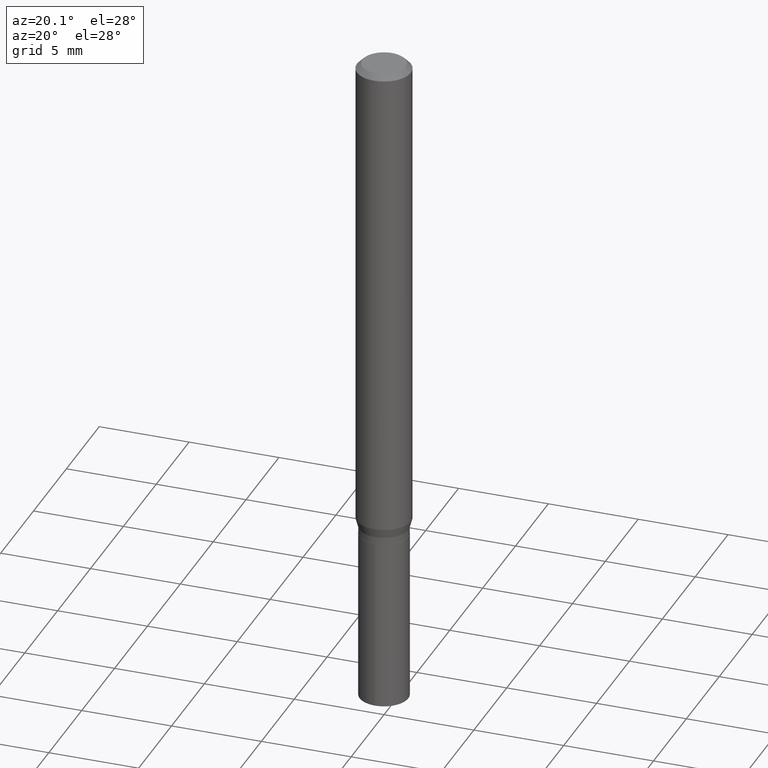
[diagram: clean part render]
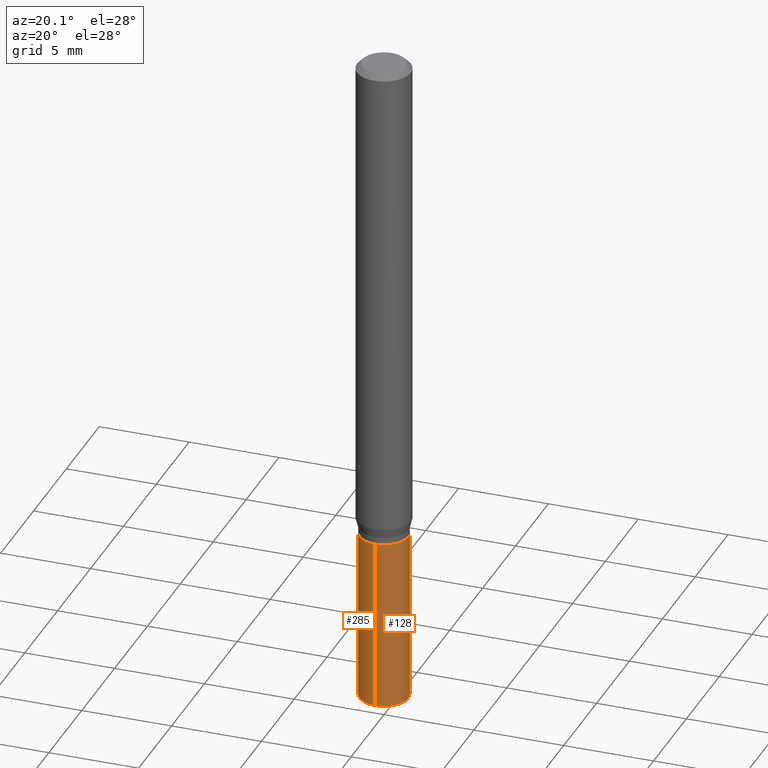
[diagram: same view with one multi-face feature highlighted, each face labeled with its STEP entity id]
A machine part, auxiliary view. The highlighted faces form ONE feature: a constant-radius fillet chain: 2 tangent blend faces with common blend radius 1.3551 mm. The faces share edges in the B-rep.
Their STEP definitions:
[1] entity #285 (Cylinder):
#6 = CIRCLE ( 'NONE', #55, 0.05335000000000000159 ) ;
#15 = VERTEX_POINT ( 'NONE', #281 ) ;
#19 = DIRECTION ( 'NONE',  ( -2.445458899330790108E-29, 3.491495526022433599E-15, 1.000000000000000000 ) ) ;
#39 = CARTESIAN_POINT ( 'NONE',  ( -3.725410588545355495E-16, -0.05335000000000382492, -1.094499999999999806 ) ) ;
#43 = DIRECTION ( 'NONE',  ( -6.982962677686265133E-15, -1.000000000000000000, 2.560307397998372008E-15 ) ) ;
#49 = ORIENTED_EDGE ( 'NONE', *, *, #288, .F. ) ;
#55 = AXIS2_PLACEMENT_3D ( 'NONE', #377, #107, #43 ) ;
#57 = CARTESIAN_POINT ( 'NONE',  ( 2.676565608369631794E-29, -3.821426325363822773E-15, -1.094499999999999806 ) ) ;
#90 = ORIENTED_EDGE ( 'NONE', *, *, #108, .T. ) ;
#107 = DIRECTION ( 'NONE',  ( -2.445458899330790108E-29, 3.491495526022433205E-15, 1.000000000000000000 ) ) ;
#108 = EDGE_CURVE ( 'NONE', #127, #345, #185, .T. ) ;
#111 = CARTESIAN_POINT ( 'NONE',  ( 3.790745495280493536E-16, 0.05334999999999616438, -1.094500000000000028 ) ) ;
#127 = VERTEX_POINT ( 'NONE', #260 ) ;
#133 = ORIENTED_EDGE ( 'NONE', *, *, #359, .F. ) ;
#135 = EDGE_LOOP ( 'NONE', ( #49, #235, #90, #133 ) ) ;
#149 = VECTOR ( 'NONE', #224, 39.37007874015748143 ) ;
#154 = CARTESIAN_POINT ( 'NONE',  ( -3.725410588545355495E-16, -0.05335000000000382492, -1.094499999999999806 ) ) ;
#182 = EDGE_CURVE ( 'NONE', #15, #127, #289, .T. ) ;
#185 = LINE ( 'NONE', #154, #149 ) ;
#214 = DIRECTION ( 'NONE',  ( -2.445458899330790108E-29, 3.491495526022433205E-15, 1.000000000000000000 ) ) ;
#224 = DIRECTION ( 'NONE',  ( -2.445458899330790108E-29, 3.491495526022433599E-15, 1.000000000000000000 ) ) ;
#235 = ORIENTED_EDGE ( 'NONE', *, *, #182, .T. ) ;
#241 = FACE_OUTER_BOUND ( 'NONE', #135, .T. ) ;
#260 = CARTESIAN_POINT ( 'NONE',  ( -3.725410588545263790E-16, -0.05335000000000515025, -1.471222486437430810 ) ) ;
#264 = VECTOR ( 'NONE', #19, 39.37007874015748143 ) ;
#281 = CARTESIAN_POINT ( 'NONE',  ( 3.790745495280494029E-16, 0.05334999999999485987, -1.471222486437431476 ) ) ;
#285 = ADVANCED_FACE ( 'NONE', ( #241 ), #439, .T. ) ;
#286 = CARTESIAN_POINT ( 'NONE',  ( 3.597824965406070746E-29, -5.136751201312159950E-15, -1.471222486437431254 ) ) ;
#288 = EDGE_CURVE ( 'NONE', #15, #470, #353, .T. ) ;
#289 = CIRCLE ( 'NONE', #357, 0.05335000000000000159 ) ;
#293 = DIRECTION ( 'NONE',  ( -2.445458899330790108E-29, 3.491495526022433205E-15, 1.000000000000000000 ) ) ;
#307 = AXIS2_PLACEMENT_3D ( 'NONE', #57, #214, #364 ) ;
#345 = VERTEX_POINT ( 'NONE', #39 ) ;
#353 = LINE ( 'NONE', #429, #264 ) ;
#357 = AXIS2_PLACEMENT_3D ( 'NONE', #286, #293, #441 ) ;
#359 = EDGE_CURVE ( 'NONE', #470, #345, #6, .T. ) ;
#364 = DIRECTION ( 'NONE',  ( -6.982962677686265133E-15, -1.000000000000000000, 2.560307397998372008E-15 ) ) ;
#377 = CARTESIAN_POINT ( 'NONE',  ( 2.676565608369631794E-29, -3.821426325363822773E-15, -1.094499999999999806 ) ) ;
#429 = CARTESIAN_POINT ( 'NONE',  ( 3.790745495280401338E-16, 0.05334999999999617826, -1.094500000000000028 ) ) ;
#439 = CYLINDRICAL_SURFACE ( 'NONE', #307, 0.05335000000000000159 ) ;
#441 = DIRECTION ( 'NONE',  ( -6.982962677686265133E-15, -1.000000000000000000, 5.120614795996744016E-15 ) ) ;
#470 = VERTEX_POINT ( 'NONE', #111 ) ;
[2] entity #128 (Cylinder):
#2 = DIRECTION ( 'NONE',  ( -6.982962677686265133E-15, -1.000000000000000000, 2.560307397998372008E-15 ) ) ;
#4 = CYLINDRICAL_SURFACE ( 'NONE', #190, 0.05335000000000000159 ) ;
#15 = VERTEX_POINT ( 'NONE', #281 ) ;
#19 = DIRECTION ( 'NONE',  ( -2.445458899330790108E-29, 3.491495526022433599E-15, 1.000000000000000000 ) ) ;
#20 = ORIENTED_EDGE ( 'NONE', *, *, #288, .T. ) ;
#28 = EDGE_LOOP ( 'NONE', ( #277, #20, #436, #219 ) ) ;
#39 = CARTESIAN_POINT ( 'NONE',  ( -3.725410588545355495E-16, -0.05335000000000382492, -1.094499999999999806 ) ) ;
#50 = EDGE_CURVE ( 'NONE', #127, #15, #226, .T. ) ;
#68 = DIRECTION ( 'NONE',  ( -2.445458899330790108E-29, 3.491495526022433205E-15, 1.000000000000000000 ) ) ;
#73 = AXIS2_PLACEMENT_3D ( 'NONE', #283, #432, #390 ) ;
#108 = EDGE_CURVE ( 'NONE', #127, #345, #185, .T. ) ;
#111 = CARTESIAN_POINT ( 'NONE',  ( 3.790745495280493536E-16, 0.05334999999999616438, -1.094500000000000028 ) ) ;
#127 = VERTEX_POINT ( 'NONE', #260 ) ;
#128 = ADVANCED_FACE ( 'NONE', ( #415 ), #4, .T. ) ;
#142 = CARTESIAN_POINT ( 'NONE',  ( 3.597824965406070746E-29, -5.136751201312159950E-15, -1.471222486437431254 ) ) ;
#149 = VECTOR ( 'NONE', #224, 39.37007874015748143 ) ;
#154 = CARTESIAN_POINT ( 'NONE',  ( -3.725410588545355495E-16, -0.05335000000000382492, -1.094499999999999806 ) ) ;
#185 = LINE ( 'NONE', #154, #149 ) ;
#188 = CARTESIAN_POINT ( 'NONE',  ( 2.676565608369631794E-29, -3.821426325363822773E-15, -1.094499999999999806 ) ) ;
#190 = AXIS2_PLACEMENT_3D ( 'NONE', #188, #408, #2 ) ;
#219 = ORIENTED_EDGE ( 'NONE', *, *, #108, .F. ) ;
#223 = EDGE_CURVE ( 'NONE', #345, #470, #428, .T. ) ;
#224 = DIRECTION ( 'NONE',  ( -2.445458899330790108E-29, 3.491495526022433599E-15, 1.000000000000000000 ) ) ;
#226 = CIRCLE ( 'NONE', #412, 0.05335000000000000159 ) ;
#260 = CARTESIAN_POINT ( 'NONE',  ( -3.725410588545263790E-16, -0.05335000000000515025, -1.471222486437430810 ) ) ;
#264 = VECTOR ( 'NONE', #19, 39.37007874015748143 ) ;
#277 = ORIENTED_EDGE ( 'NONE', *, *, #50, .T. ) ;
#281 = CARTESIAN_POINT ( 'NONE',  ( 3.790745495280494029E-16, 0.05334999999999485987, -1.471222486437431476 ) ) ;
#283 = CARTESIAN_POINT ( 'NONE',  ( 2.676565608369631794E-29, -3.821426325363822773E-15, -1.094499999999999806 ) ) ;
#287 = DIRECTION ( 'NONE',  ( -6.982962677686265133E-15, -1.000000000000000000, 5.120614795996744016E-15 ) ) ;
#288 = EDGE_CURVE ( 'NONE', #15, #470, #353, .T. ) ;
#345 = VERTEX_POINT ( 'NONE', #39 ) ;
#353 = LINE ( 'NONE', #429, #264 ) ;
#390 = DIRECTION ( 'NONE',  ( -6.982962677686265133E-15, -1.000000000000000000, 2.560307397998372008E-15 ) ) ;
#408 = DIRECTION ( 'NONE',  ( -2.445458899330790108E-29, 3.491495526022433205E-15, 1.000000000000000000 ) ) ;
#412 = AXIS2_PLACEMENT_3D ( 'NONE', #142, #68, #287 ) ;
#415 = FACE_OUTER_BOUND ( 'NONE', #28, .T. ) ;
#428 = CIRCLE ( 'NONE', #73, 0.05335000000000000159 ) ;
#429 = CARTESIAN_POINT ( 'NONE',  ( 3.790745495280401338E-16, 0.05334999999999617826, -1.094500000000000028 ) ) ;
#432 = DIRECTION ( 'NONE',  ( -2.445458899330790108E-29, 3.491495526022433205E-15, 1.000000000000000000 ) ) ;
#436 = ORIENTED_EDGE ( 'NONE', *, *, #223, .F. ) ;
#470 = VERTEX_POINT ( 'NONE', #111 ) ;